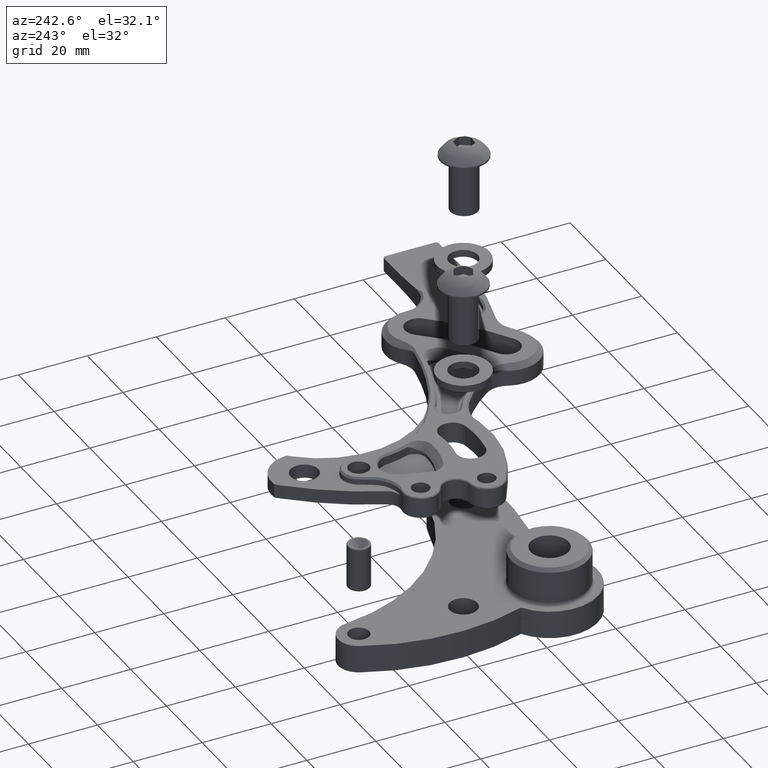
[diagram: clean part render]
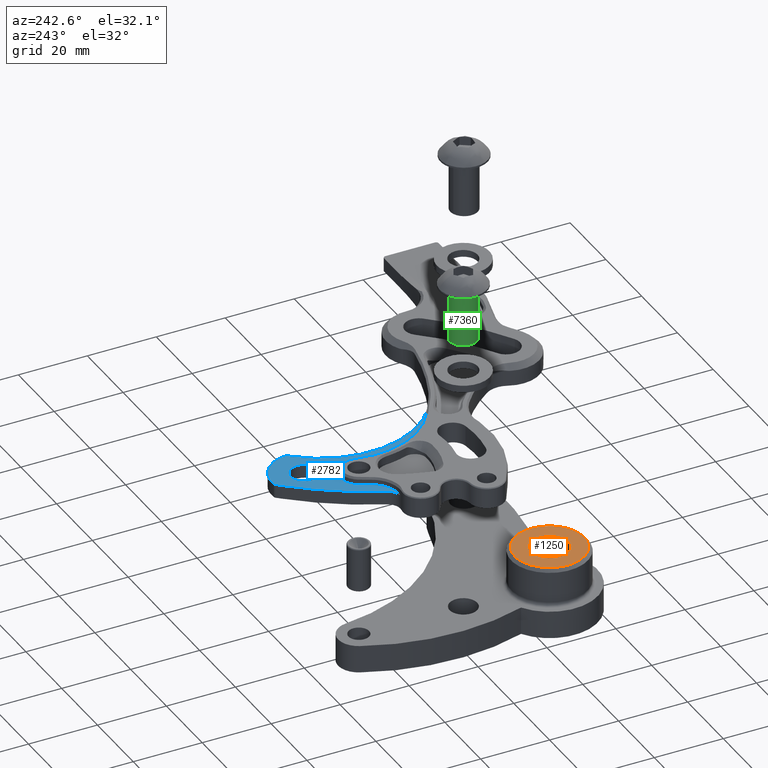
[diagram: same view with three faces highlighted in distinct colors, each labeled with its STEP entity id]
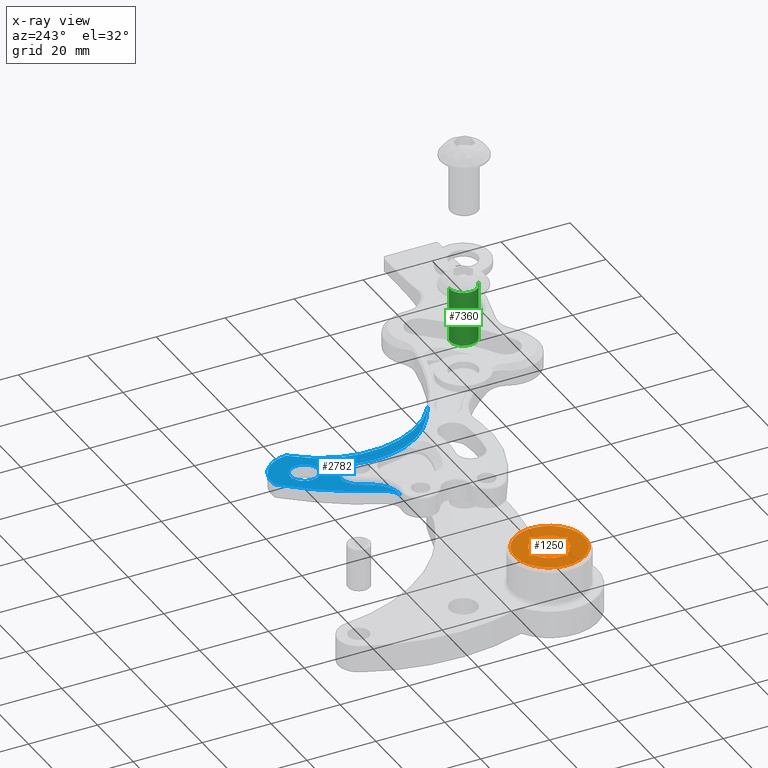
[diagram: x-ray of the same camera — body ghosted, the three highlighted faces saturated]
A machine part, auxiliary view with three faces highlighted in distinct colors.
The next image is the same camera in x-ray (body ghosted, the three faces saturated) — at least one of them is partly hidden behind the body in this view.
Their STEP definitions:

[orange] entity #1250 — the highlighted planar face has unit normal (-0, -0, 1).
#93 = EDGE_CURVE ( 'NONE', #6298, #3860, #7480, .T. ) ;
#355 = CARTESIAN_POINT ( 'NONE',  ( 3.938218063949155301, -6.781037750492001415, -0.7480314960629921295 ) ) ;
#599 = DIRECTION ( 'NONE',  ( -1.000000000000000000, 0.0000000000000000000, 0.0000000000000000000 ) ) ;
#1049 = DIRECTION ( 'NONE',  ( 0.0000000000000000000, 0.0000000000000000000, -1.000000000000000000 ) ) ;
#1107 = CARTESIAN_POINT ( 'NONE',  ( 4.336347985208998779, -6.781037750492001415, -0.7480314960629921295 ) ) ;
#1250 = ADVANCED_FACE ( 'NONE', ( #3404, #6289 ), #3975, .T. ) ;
#1304 = CARTESIAN_POINT ( 'NONE',  ( 4.119812552138133022, -6.781037750492001415, -0.7480314960629921295 ) ) ;
#1534 = EDGE_LOOP ( 'NONE', ( #7886, #2305 ) ) ;
#1728 = DIRECTION ( 'NONE',  ( -1.000000000000000000, 0.0000000000000000000, 0.0000000000000000000 ) ) ;
#2146 = DIRECTION ( 'NONE',  ( -1.000000000000000000, 0.0000000000000000000, -0.0000000000000000000 ) ) ;
#2305 = ORIENTED_EDGE ( 'NONE', *, *, #4094, .F. ) ;
#2830 = VERTEX_POINT ( 'NONE', #1304 ) ;
#2850 = CIRCLE ( 'NONE', #3425, 0.2165354330708663400 ) ;
#3231 = DIRECTION ( 'NONE',  ( -1.000000000000000000, 0.0000000000000000000, 0.0000000000000000000 ) ) ;
#3266 = AXIS2_PLACEMENT_3D ( 'NONE', #7592, #3862, #3231 ) ;
#3404 = FACE_OUTER_BOUND ( 'NONE', #6637, .T. ) ;
#3425 = AXIS2_PLACEMENT_3D ( 'NONE', #8010, #4289, #599 ) ;
#3426 = ORIENTED_EDGE ( 'NONE', *, *, #7981, .T. ) ;
#3478 = AXIS2_PLACEMENT_3D ( 'NONE', #1107, #5413, #1728 ) ;
#3643 = AXIS2_PLACEMENT_3D ( 'NONE', #4736, #1049, #5362 ) ;
#3860 = VERTEX_POINT ( 'NONE', #355 ) ;
#3862 = DIRECTION ( 'NONE',  ( 0.0000000000000000000, 0.0000000000000000000, -1.000000000000000000 ) ) ;
#3975 = PLANE ( 'NONE',  #6460 ) ;
#4094 = EDGE_CURVE ( 'NONE', #2830, #6872, #2850, .T. ) ;
#4289 = DIRECTION ( 'NONE',  ( 0.0000000000000000000, 0.0000000000000000000, -1.000000000000000000 ) ) ;
#4736 = CARTESIAN_POINT ( 'NONE',  ( 4.336347985208998779, -6.781037750492001415, -0.7480314960629921295 ) ) ;
#5196 = CARTESIAN_POINT ( 'NONE',  ( 4.336347985208998779, -6.781037750492001415, -0.7480314960629921295 ) ) ;
#5362 = DIRECTION ( 'NONE',  ( -1.000000000000000000, 0.0000000000000000000, 0.0000000000000000000 ) ) ;
#5413 = DIRECTION ( 'NONE',  ( 0.0000000000000000000, 0.0000000000000000000, -1.000000000000000000 ) ) ;
#5647 = EDGE_CURVE ( 'NONE', #6872, #2830, #7382, .T. ) ;
#5841 = DIRECTION ( 'NONE',  ( 0.0000000000000000000, 0.0000000000000000000, -1.000000000000000000 ) ) ;
#6289 = FACE_BOUND ( 'NONE', #1534, .T. ) ;
#6298 = VERTEX_POINT ( 'NONE', #6438 ) ;
#6438 = CARTESIAN_POINT ( 'NONE',  ( 4.734477906468842257, -6.781037750492001415, -0.7480314960629921295 ) ) ;
#6460 = AXIS2_PLACEMENT_3D ( 'NONE', #5196, #5841, #2146 ) ;
#6637 = EDGE_LOOP ( 'NONE', ( #7581, #3426 ) ) ;
#6872 = VERTEX_POINT ( 'NONE', #7392 ) ;
#7007 = CIRCLE ( 'NONE', #3478, 0.3981299212598434778 ) ;
#7382 = CIRCLE ( 'NONE', #3643, 0.2165354330708663400 ) ;
#7392 = CARTESIAN_POINT ( 'NONE',  ( 4.552883418279865424, -6.781037750492001415, -0.7480314960629921295 ) ) ;
#7480 = CIRCLE ( 'NONE', #3266, 0.3981299212598434778 ) ;
#7581 = ORIENTED_EDGE ( 'NONE', *, *, #93, .T. ) ;
#7592 = CARTESIAN_POINT ( 'NONE',  ( 4.336347985208998779, -6.781037750492001415, -0.7480314960629921295 ) ) ;
#7886 = ORIENTED_EDGE ( 'NONE', *, *, #5647, .F. ) ;
#7981 = EDGE_CURVE ( 'NONE', #3860, #6298, #7007, .T. ) ;
#8010 = CARTESIAN_POINT ( 'NONE',  ( 4.336347985208998779, -6.781037750492001415, -0.7480314960629921295 ) ) ;

[blue] entity #2782 — the highlighted planar face has unit normal (-0, 0, 1).
#102 = CARTESIAN_POINT ( 'NONE',  ( 1.666658393713041031, -1.303488982121212558, 0.1570000000000000007 ) ) ;
#114 = FACE_BOUND ( 'NONE', #809, .T. ) ;
#189 = ORIENTED_EDGE ( 'NONE', *, *, #5329, .F. ) ;
#245 = EDGE_LOOP ( 'NONE', ( #7282, #2914, #5488, #4886, #4247, #5439, #4598, #2427, #189, #7339, #7697, #7171, #2281, #2257 ) ) ;
#256 = DIRECTION ( 'NONE',  ( 1.000000000000000000, 0.0000000000000000000, 0.0000000000000000000 ) ) ;
#404 = CARTESIAN_POINT ( 'NONE',  ( 0.3445170119687941401, -0.3847233003165552168, 0.1570000000000000007 ) ) ;
#446 = DIRECTION ( 'NONE',  ( -0.0000000000000000000, 0.0000000000000000000, 1.000000000000000000 ) ) ;
#549 = EDGE_CURVE ( 'NONE', #7611, #4066, #2912, .T. ) ;
#567 = DIRECTION ( 'NONE',  ( -0.0000000000000000000, 0.0000000000000000000, 1.000000000000000000 ) ) ;
#587 = CARTESIAN_POINT ( 'NONE',  ( 0.5835204762290000513, -0.1359214834589999865, 0.1570000000000000007 ) ) ;
#691 = CIRCLE ( 'NONE', #1089, 0.1979999999998463822 ) ;
#761 = ORIENTED_EDGE ( 'NONE', *, *, #549, .T. ) ;
#770 = AXIS2_PLACEMENT_3D ( 'NONE', #6917, #3196, #7530 ) ;
#780 = EDGE_CURVE ( 'NONE', #7483, #6071, #1378, .T. ) ;
#809 = EDGE_LOOP ( 'NONE', ( #3446, #761 ) ) ;
#911 = CARTESIAN_POINT ( 'NONE',  ( 1.712867017816132931, -0.1743452912502976571, 0.1570000000000000007 ) ) ;
#941 = EDGE_CURVE ( 'NONE', #7747, #3570, #7191, .T. ) ;
#1032 = DIRECTION ( 'NONE',  ( 1.000000000000000000, 0.0000000000000000000, 0.0000000000000000000 ) ) ;
#1084 = CARTESIAN_POINT ( 'NONE',  ( 0.05064887240644196098, -0.1618729927095297338, 0.1570000000000000007 ) ) ;
#1089 = AXIS2_PLACEMENT_3D ( 'NONE', #4132, #446, #4753 ) ;
#1100 = CIRCLE ( 'NONE', #5216, 0.3749999999999998890 ) ;
#1104 = EDGE_CURVE ( 'NONE', #2593, #1918, #5426, .T. ) ;
#1216 = DIRECTION ( 'NONE',  ( 1.000000000000000000, 0.0000000000000000000, 0.0000000000000000000 ) ) ;
#1247 = EDGE_CURVE ( 'NONE', #6033, #6322, #2989, .T. ) ;
#1248 = CARTESIAN_POINT ( 'NONE',  ( 0.2670259517567126761, -0.9235978963069315650, 0.1570000000000000007 ) ) ;
#1256 = CARTESIAN_POINT ( 'NONE',  ( 0.3445170119687941401, -0.3847233003165552168, 0.1570000000000000007 ) ) ;
#1275 = CARTESIAN_POINT ( 'NONE',  ( 0.0000000000000000000, 0.0000000000000000000, 0.1570000000000000007 ) ) ;
#1378 = CIRCLE ( 'NONE', #5980, 0.3171220572352611566 ) ;
#1404 = DIRECTION ( 'NONE',  ( -0.0000000000000000000, 0.0000000000000000000, 1.000000000000000000 ) ) ;
#1442 = VERTEX_POINT ( 'NONE', #1084 ) ;
#1509 = EDGE_CURVE ( 'NONE', #6371, #1442, #6186, .T. ) ;
#1510 = AXIS2_PLACEMENT_3D ( 'NONE', #5091, #1404, #5710 ) ;
#1532 = DIRECTION ( 'NONE',  ( 1.000000000000000000, 0.0000000000000000000, 0.0000000000000000000 ) ) ;
#1551 = EDGE_CURVE ( 'NONE', #1442, #3054, #2506, .T. ) ;
#1701 = EDGE_CURVE ( 'NONE', #3054, #6486, #2150, .T. ) ;
#1745 = AXIS2_PLACEMENT_3D ( 'NONE', #4257, #567, #4883 ) ;
#1760 = CARTESIAN_POINT ( 'NONE',  ( 1.481972124836857363, -0.3533604958806336738, 0.1570000000000000007 ) ) ;
#1777 = CIRCLE ( 'NONE', #1745, 0.1499999999999998834 ) ;
#1882 = DIRECTION ( 'NONE',  ( 1.000000000000000000, 0.0000000000000000000, 0.0000000000000000000 ) ) ;
#1918 = VERTEX_POINT ( 'NONE', #1248 ) ;
#2150 = CIRCLE ( 'NONE', #3242, 3.250000000000001332 ) ;
#2157 = CARTESIAN_POINT ( 'NONE',  ( 0.05000000000024396735, -0.2268133469192753215, 0.1570000000000000007 ) ) ;
#2257 = ORIENTED_EDGE ( 'NONE', *, *, #1701, .T. ) ;
#2281 = ORIENTED_EDGE ( 'NONE', *, *, #1551, .T. ) ;
#2286 = CARTESIAN_POINT ( 'NONE',  ( 0.3048276035643123771, -1.568202072102402145, 0.1570000000000000007 ) ) ;
#2364 = DIRECTION ( 'NONE',  ( 1.000000000000000000, 0.0000000000000000000, 0.0000000000000000000 ) ) ;
#2427 = ORIENTED_EDGE ( 'NONE', *, *, #1247, .F. ) ;
#2506 = CIRCLE ( 'NONE', #770, 3.250000000000001332 ) ;
#2593 = VERTEX_POINT ( 'NONE', #5161 ) ;
#2644 = CARTESIAN_POINT ( 'NONE',  ( 0.2717141486136365192, -0.9664295057271530265, 0.1570000000000000007 ) ) ;
#2780 = CIRCLE ( 'NONE', #4809, 3.020000000000337081 ) ;
#2782 = ADVANCED_FACE ( 'NONE', ( #114, #3399 ), #6217, .T. ) ;
#2862 = DIRECTION ( 'NONE',  ( -0.0000000000000000000, 0.0000000000000000000, 1.000000000000000000 ) ) ;
#2911 = DIRECTION ( 'NONE',  ( 0.9816271834478238478, 0.1908089953757225454, 0.0000000000000000000 ) ) ;
#2912 = CIRCLE ( 'NONE', #6961, 0.1580000000002058369 ) ;
#2914 = ORIENTED_EDGE ( 'NONE', *, *, #780, .T. ) ;
#2958 = AXIS2_PLACEMENT_3D ( 'NONE', #6727, #3010, #7349 ) ;
#2961 = VERTEX_POINT ( 'NONE', #2644 ) ;
#2989 = CIRCLE ( 'NONE', #5220, 1.100000000000000311 ) ;
#3010 = DIRECTION ( 'NONE',  ( -0.0000000000000000000, 0.0000000000000000000, 1.000000000000000000 ) ) ;
#3054 = VERTEX_POINT ( 'NONE', #2157 ) ;
#3110 = CARTESIAN_POINT ( 'NONE',  ( 0.08064288281499999711, -0.1624724421329999668, 0.1570000000000000007 ) ) ;
#3124 = DIRECTION ( 'NONE',  ( 1.000000000000000000, 0.0000000000000000000, 0.0000000000000000000 ) ) ;
#3164 = CARTESIAN_POINT ( 'NONE',  ( 0.6128670178161328419, -0.1743452912502976571, 0.1570000000000000007 ) ) ;
#3196 = DIRECTION ( 'NONE',  ( -0.0000000000000000000, 0.0000000000000000000, 1.000000000000000000 ) ) ;
#3242 = AXIS2_PLACEMENT_3D ( 'NONE', #7658, #3947, #256 ) ;
#3290 = AXIS2_PLACEMENT_3D ( 'NONE', #587, #4902, #1216 ) ;
#3370 = DIRECTION ( 'NONE',  ( -0.0000000000000000000, 0.0000000000000000000, 1.000000000000000000 ) ) ;
#3399 = FACE_OUTER_BOUND ( 'NONE', #245, .T. ) ;
#3443 = VECTOR ( 'NONE', #2911, 39.37007874015748854 ) ;
#3446 = ORIENTED_EDGE ( 'NONE', *, *, #3561, .T. ) ;
#3468 = CARTESIAN_POINT ( 'NONE',  ( 3.220207307667000141, -0.3131393014400000174, 0.1570000000000000007 ) ) ;
#3561 = EDGE_CURVE ( 'NONE', #4066, #7611, #6076, .T. ) ;
#3570 = VERTEX_POINT ( 'NONE', #6420 ) ;
#3635 = CARTESIAN_POINT ( 'NONE',  ( 0.1865170119685882755, -0.3847233003165552168, 0.1570000000000000007 ) ) ;
#3742 = DIRECTION ( 'NONE',  ( 1.000000000000000000, 0.0000000000000000000, 0.0000000000000000000 ) ) ;
#3775 = CARTESIAN_POINT ( 'NONE',  ( 0.5025170119690000048, -0.3847233003165552168, 0.1570000000000000007 ) ) ;
#3901 = EDGE_CURVE ( 'NONE', #2961, #6071, #2780, .T. ) ;
#3919 = CARTESIAN_POINT ( 'NONE',  ( 0.6135031277755617074, -0.1369415845507869212, 0.1570000000000000007 ) ) ;
#3947 = DIRECTION ( 'NONE',  ( -0.0000000000000000000, 0.0000000000000000000, 1.000000000000000000 ) ) ;
#3966 = EDGE_CURVE ( 'NONE', #6412, #6322, #5079, .T. ) ;
#4033 = AXIS2_PLACEMENT_3D ( 'NONE', #1760, #6067, #2364 ) ;
#4066 = VERTEX_POINT ( 'NONE', #3635 ) ;
#4096 = DIRECTION ( 'NONE',  ( 1.000000000000000000, 0.0000000000000000000, 0.0000000000000000000 ) ) ;
#4132 = CARTESIAN_POINT ( 'NONE',  ( 0.4650259517565590861, -0.9235978963069315650, 0.1570000000000000007 ) ) ;
#4247 = ORIENTED_EDGE ( 'NONE', *, *, #1104, .F. ) ;
#4257 = CARTESIAN_POINT ( 'NONE',  ( 0.08311494331799999802, -1.327563333107999899, 0.1570000000000000007 ) ) ;
#4333 = CARTESIAN_POINT ( 'NONE',  ( 0.05769730636681905805, -0.1431462805518509407, 0.1570000000000000007 ) ) ;
#4598 = ORIENTED_EDGE ( 'NONE', *, *, #3966, .T. ) ;
#4719 = DIRECTION ( 'NONE',  ( 0.0000000000000000000, -0.0000000000000000000, -1.000000000000000000 ) ) ;
#4753 = DIRECTION ( 'NONE',  ( 1.000000000000000000, 0.0000000000000000000, 0.0000000000000000000 ) ) ;
#4809 = AXIS2_PLACEMENT_3D ( 'NONE', #3468, #7813, #4096 ) ;
#4883 = DIRECTION ( 'NONE',  ( 1.000000000000000000, 0.0000000000000000000, 0.0000000000000000000 ) ) ;
#4886 = ORIENTED_EDGE ( 'NONE', *, *, #6971, .F. ) ;
#4902 = DIRECTION ( 'NONE',  ( -0.0000000000000000000, 0.0000000000000000000, 1.000000000000000000 ) ) ;
#5079 = LINE ( 'NONE', #2286, #3443 ) ;
#5091 = CARTESIAN_POINT ( 'NONE',  ( 0.4650259517565590861, -0.9235978963069315650, 0.1570000000000000007 ) ) ;
#5158 = EDGE_CURVE ( 'NONE', #3570, #6371, #1100, .T. ) ;
#5161 = CARTESIAN_POINT ( 'NONE',  ( 0.6377279954989386601, -0.8267578008542925128, 0.1570000000000000007 ) ) ;
#5216 = AXIS2_PLACEMENT_3D ( 'NONE', #6586, #2862, #7215 ) ;
#5217 = DIRECTION ( 'NONE',  ( -0.0000000000000000000, 0.0000000000000000000, 1.000000000000000000 ) ) ;
#5220 = AXIS2_PLACEMENT_3D ( 'NONE', #911, #5217, #1532 ) ;
#5329 = EDGE_CURVE ( 'NONE', #7747, #6033, #6696, .T. ) ;
#5336 = EDGE_CURVE ( 'NONE', #7483, #6486, #1777, .T. ) ;
#5426 = CIRCLE ( 'NONE', #1510, 0.1979999999998463822 ) ;
#5439 = ORIENTED_EDGE ( 'NONE', *, *, #6325, .T. ) ;
#5488 = ORIENTED_EDGE ( 'NONE', *, *, #3901, .F. ) ;
#5561 = DIRECTION ( 'NONE',  ( 0.0000000000000000000, -0.0000000000000000000, -1.000000000000000000 ) ) ;
#5710 = DIRECTION ( 'NONE',  ( 1.000000000000000000, 0.0000000000000000000, 0.0000000000000000000 ) ) ;
#5713 = CARTESIAN_POINT ( 'NONE',  ( 0.2250363428774994623, -1.279000833717287344, 0.1570000000000000007 ) ) ;
#5717 = CARTESIAN_POINT ( 'NONE',  ( 0.3047084679663124573, -1.100709308300330092, 0.1570000000000000007 ) ) ;
#5980 = AXIS2_PLACEMENT_3D ( 'NONE', #7092, #3370, #7720 ) ;
#6033 = VERTEX_POINT ( 'NONE', #3164 ) ;
#6067 = DIRECTION ( 'NONE',  ( -0.0000000000000000000, 0.0000000000000000000, 1.000000000000000000 ) ) ;
#6071 = VERTEX_POINT ( 'NONE', #5717 ) ;
#6076 = CIRCLE ( 'NONE', #7621, 0.1580000000002058369 ) ;
#6186 = CIRCLE ( 'NONE', #6294, 0.03000000000000000583 ) ;
#6200 = CIRCLE ( 'NONE', #4033, 0.9679117512861715733 ) ;
#6217 = PLANE ( 'NONE',  #7218 ) ;
#6294 = AXIS2_PLACEMENT_3D ( 'NONE', #3110, #7454, #3742 ) ;
#6322 = VERTEX_POINT ( 'NONE', #7923 ) ;
#6325 = EDGE_CURVE ( 'NONE', #2593, #6412, #6200, .T. ) ;
#6371 = VERTEX_POINT ( 'NONE', #4333 ) ;
#6412 = VERTEX_POINT ( 'NONE', #102 ) ;
#6420 = CARTESIAN_POINT ( 'NONE',  ( 0.6043033861647076899, -0.1142865428627268948, 0.1570000000000000007 ) ) ;
#6486 = VERTEX_POINT ( 'NONE', #5713 ) ;
#6508 = CARTESIAN_POINT ( 'NONE',  ( 0.1590072123376368718, -1.456947889771656568, 0.1570000000000000007 ) ) ;
#6586 = CARTESIAN_POINT ( 'NONE',  ( 0.3445170119687941401, -0.3847233003165552168, 0.1570000000000000007 ) ) ;
#6696 = CIRCLE ( 'NONE', #2958, 1.100000000000000311 ) ;
#6727 = CARTESIAN_POINT ( 'NONE',  ( 1.712867017816132931, -0.1743452912502976571, 0.1570000000000000007 ) ) ;
#6841 = DIRECTION ( 'NONE',  ( -0.0000000000000000000, 0.0000000000000000000, 1.000000000000000000 ) ) ;
#6917 = CARTESIAN_POINT ( 'NONE',  ( 3.300000000000244516, -0.2268133469192753215, 0.1570000000000000007 ) ) ;
#6961 = AXIS2_PLACEMENT_3D ( 'NONE', #1256, #5561, #1882 ) ;
#6971 = EDGE_CURVE ( 'NONE', #1918, #2961, #691, .T. ) ;
#7092 = CARTESIAN_POINT ( 'NONE',  ( -0.001440204190134151312, -1.183409911211662280, 0.1570000000000000007 ) ) ;
#7171 = ORIENTED_EDGE ( 'NONE', *, *, #1509, .T. ) ;
#7191 = CIRCLE ( 'NONE', #3290, 0.03000000000000002318 ) ;
#7215 = DIRECTION ( 'NONE',  ( 1.000000000000000000, 0.0000000000000000000, 0.0000000000000000000 ) ) ;
#7218 = AXIS2_PLACEMENT_3D ( 'NONE', #1275, #6841, #3124 ) ;
#7282 = ORIENTED_EDGE ( 'NONE', *, *, #5336, .F. ) ;
#7339 = ORIENTED_EDGE ( 'NONE', *, *, #941, .T. ) ;
#7349 = DIRECTION ( 'NONE',  ( 1.000000000000000000, 0.0000000000000000000, 0.0000000000000000000 ) ) ;
#7454 = DIRECTION ( 'NONE',  ( -0.0000000000000000000, 0.0000000000000000000, 1.000000000000000000 ) ) ;
#7483 = VERTEX_POINT ( 'NONE', #6508 ) ;
#7530 = DIRECTION ( 'NONE',  ( 1.000000000000000000, 0.0000000000000000000, 0.0000000000000000000 ) ) ;
#7611 = VERTEX_POINT ( 'NONE', #3775 ) ;
#7621 = AXIS2_PLACEMENT_3D ( 'NONE', #404, #4719, #1032 ) ;
#7658 = CARTESIAN_POINT ( 'NONE',  ( 3.300000000000244516, -0.2268133469192753215, 0.1570000000000000007 ) ) ;
#7697 = ORIENTED_EDGE ( 'NONE', *, *, #5158, .T. ) ;
#7720 = DIRECTION ( 'NONE',  ( 1.000000000000000000, 0.0000000000000000000, 0.0000000000000000000 ) ) ;
#7747 = VERTEX_POINT ( 'NONE', #3919 ) ;
#7813 = DIRECTION ( 'NONE',  ( -0.0000000000000000000, 0.0000000000000000000, 1.000000000000000000 ) ) ;
#7923 = CARTESIAN_POINT ( 'NONE',  ( 1.892880746454881580, -1.259515811261588736, 0.1570000000000000007 ) ) ;

[green] entity #7360 — the highlighted cylindrical surface (edge-blend (fillet) strip) has radius 4 mm, axis along (-0, 0, 1).
#113 = DIRECTION ( 'NONE',  ( 1.000000000000000000, -6.247910885067006467E-16, -1.036970808195480352E-16 ) ) ;
#221 = CARTESIAN_POINT ( 'NONE',  ( -0.6299212598425198983, -0.1574803149606302244, -1.837153006645537949E-17 ) ) ;
#380 = AXIS2_PLACEMENT_3D ( 'NONE', #1427, #3882, #5772 ) ;
#680 = DIRECTION ( 'NONE',  ( -1.000000000000000000, 6.247910885067006467E-16, 1.036970808195480352E-16 ) ) ;
#1113 = FACE_OUTER_BOUND ( 'NONE', #2448, .T. ) ;
#1160 = VERTEX_POINT ( 'NONE', #221 ) ;
#1171 = AXIS2_PLACEMENT_3D ( 'NONE', #3810, #113, #4422 ) ;
#1427 = CARTESIAN_POINT ( 'NONE',  ( -0.8070866141732285781, 1.365923996832131609E-16, 0.0000000000000000000 ) ) ;
#1495 = CARTESIAN_POINT ( 'NONE',  ( 9.839229740263024555E-17, 0.1574803149606298913, -3.174625159785075053E-17 ) ) ;
#1812 = ORIENTED_EDGE ( 'NONE', *, *, #5475, .T. ) ;
#2395 = LINE ( 'NONE', #4380, #5484 ) ;
#2448 = EDGE_LOOP ( 'NONE', ( #7716, #3663, #2869, #1812 ) ) ;
#2465 = EDGE_CURVE ( 'NONE', #6572, #4579, #4167, .T. ) ;
#2706 = EDGE_CURVE ( 'NONE', #6572, #3359, #3386, .T. ) ;
#2869 = ORIENTED_EDGE ( 'NONE', *, *, #3655, .T. ) ;
#3039 = DIRECTION ( 'NONE',  ( -1.000000000000000000, 6.247910885067006467E-16, 1.036970808195480352E-16 ) ) ;
#3359 = VERTEX_POINT ( 'NONE', #7415 ) ;
#3386 = CIRCLE ( 'NONE', #4715, 0.1574803149606302799 ) ;
#3434 = CYLINDRICAL_SURFACE ( 'NONE', #380, 0.1574803149606302799 ) ;
#3655 = EDGE_CURVE ( 'NONE', #3359, #1160, #2395, .T. ) ;
#3663 = ORIENTED_EDGE ( 'NONE', *, *, #2706, .T. ) ;
#3810 = CARTESIAN_POINT ( 'NONE',  ( -0.6299212598425196763, 2.590106510525428567E-17, -1.837153006645537949E-17 ) ) ;
#3882 = DIRECTION ( 'NONE',  ( -1.000000000000000000, 6.247910885067006467E-16, 1.036970808195480352E-16 ) ) ;
#3983 = VECTOR ( 'NONE', #680, 39.37007874015748143 ) ;
#4167 = LINE ( 'NONE', #4993, #3983 ) ;
#4350 = CARTESIAN_POINT ( 'NONE',  ( -0.6299212598425195653, 0.1574803149606303077, -3.174625159785075670E-17 ) ) ;
#4380 = CARTESIAN_POINT ( 'NONE',  ( -0.8070866141732286891, -0.1574803149606301411, 0.0000000000000000000 ) ) ;
#4422 = DIRECTION ( 'NONE',  ( -8.673617379884015751E-16, -1.000000000000000000, 0.0000000000000000000 ) ) ;
#4579 = VERTEX_POINT ( 'NONE', #4350 ) ;
#4715 = AXIS2_PLACEMENT_3D ( 'NONE', #6756, #3039, #7388 ) ;
#4993 = CARTESIAN_POINT ( 'NONE',  ( -0.8070866141732283561, 0.1574803149606304187, 1.928577636452528924E-17 ) ) ;
#5475 = EDGE_CURVE ( 'NONE', #1160, #4579, #6788, .T. ) ;
#5484 = VECTOR ( 'NONE', #6873, 39.37007874015748143 ) ;
#5772 = DIRECTION ( 'NONE',  ( -8.673617379884015751E-16, -1.000000000000000000, 0.0000000000000000000 ) ) ;
#6572 = VERTEX_POINT ( 'NONE', #1495 ) ;
#6756 = CARTESIAN_POINT ( 'NONE',  ( 0.0000000000000000000, -3.676681245052657937E-16, -8.369252585829666307E-17 ) ) ;
#6788 = CIRCLE ( 'NONE', #1171, 0.1574803149606302799 ) ;
#6873 = DIRECTION ( 'NONE',  ( -1.000000000000000000, 6.247910885067006467E-16, 1.036970808195480352E-16 ) ) ;
#7360 = ADVANCED_FACE ( 'NONE', ( #1113 ), #3434, .T. ) ;
#7388 = DIRECTION ( 'NONE',  ( -6.247910885067006467E-16, -1.000000000000000000, 0.0000000000000000000 ) ) ;
#7415 = CARTESIAN_POINT ( 'NONE',  ( -9.839229740263024555E-17, -0.1574803149606306407, -8.369252585829666307E-17 ) ) ;
#7716 = ORIENTED_EDGE ( 'NONE', *, *, #2465, .F. ) ;